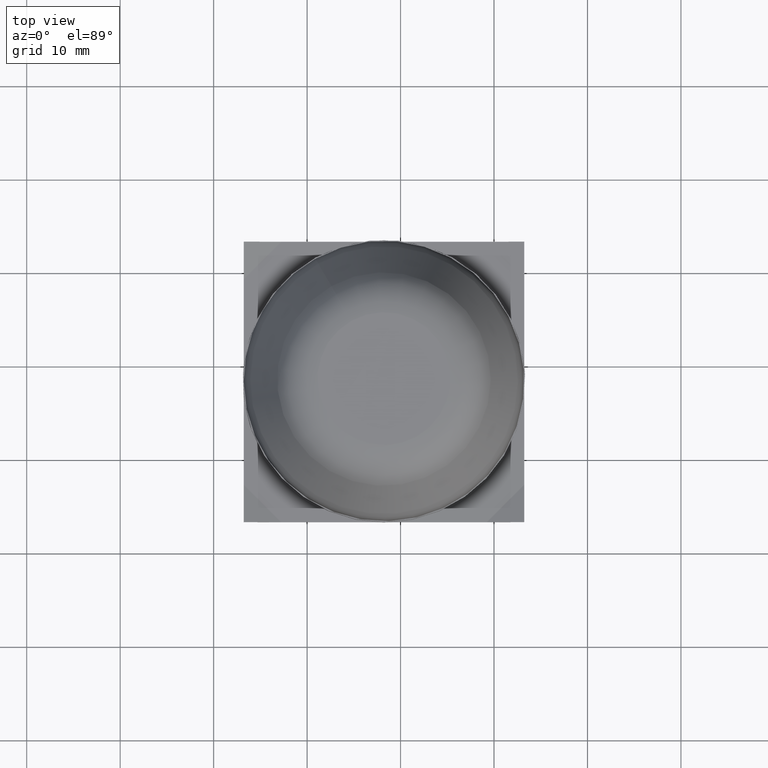
[diagram: clean part render]
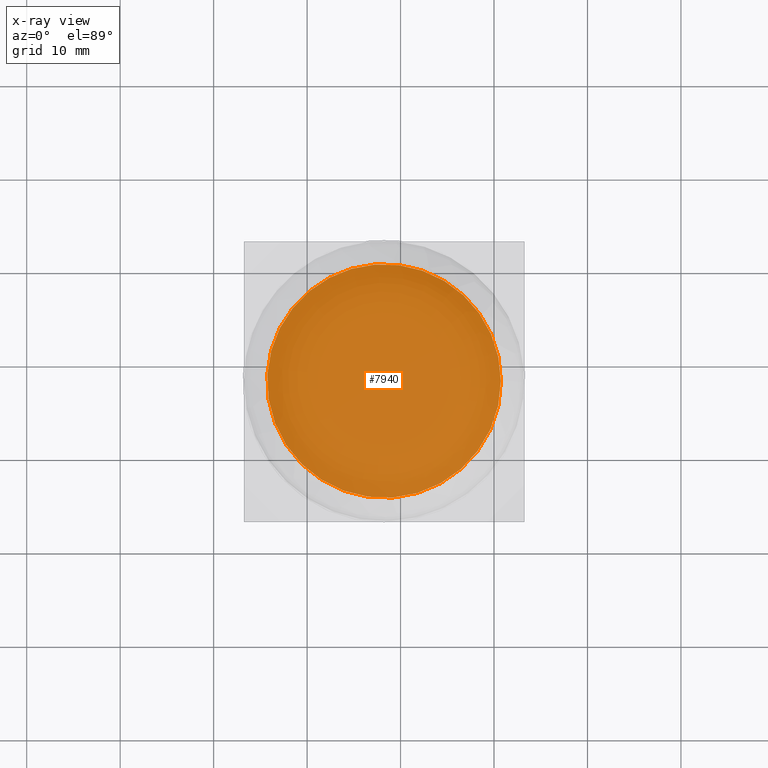
[diagram: x-ray — body ghosted, one internal face saturated and labeled with its STEP entity id]
A machine part, top view, then the same camera in x-ray: the body is ghosted and one INTERNAL B-rep face — a face not visible from any outside direction — is saturated and labeled: STEP entity #7940.
In plain terms, the highlighted planar face has unit normal (0, 0, -1).
Its self-contained STEP definition (entity closure, byte-faithful):
#1657=FACE_OUTER_BOUND('',#10372,.F.);
#7940=ADVANCED_FACE('',(#1657),#9435,.T.);
#9435=PLANE('',#28159);
#10372=EDGE_LOOP('',(#12093,#12094));
#12093=ORIENTED_EDGE('',*,*,#23005,.T.);
#12094=ORIENTED_EDGE('',*,*,#23006,.T.);
#20296=VERTEX_POINT('',#37875);
#20297=VERTEX_POINT('',#37876);
#23005=EDGE_CURVE('',#20296,#20297,#27104,.T.);
#23006=EDGE_CURVE('',#20297,#20296,#27105,.T.);
#27104=CIRCLE('',#28157,12.4999999999997);
#27105=CIRCLE('',#28158,12.4999999999997);
#28157=AXIS2_PLACEMENT_3D('',#37874,#30644,#30645);
#28158=AXIS2_PLACEMENT_3D('',#37877,#30646,#30647);
#28159=AXIS2_PLACEMENT_3D('',#37878,#30648,#30649);
#30644=DIRECTION('',(0.,0.,1.));
#30645=DIRECTION('',(1.,0.,0.));
#30646=DIRECTION('',(0.,0.,1.));
#30647=DIRECTION('',(1.,0.,0.));
#30648=DIRECTION('',(0.,0.,-1.));
#30649=DIRECTION('',(-1.,0.,0.));
#37874=CARTESIAN_POINT('',(-1.77184302810665,-12.4,33.5000000000006));
#37875=CARTESIAN_POINT('',(-0.192789345808631,-0.000137522197532491,33.5000000000006));
#37876=CARTESIAN_POINT('',(-14.2497844375188,-11.6577209532333,33.5000000000006));
#37877=CARTESIAN_POINT('',(-1.77184302810665,-12.4,33.5000000000006));
#37878=CARTESIAN_POINT('',(11.978156971893,-26.1499999999997,33.5000000000006));